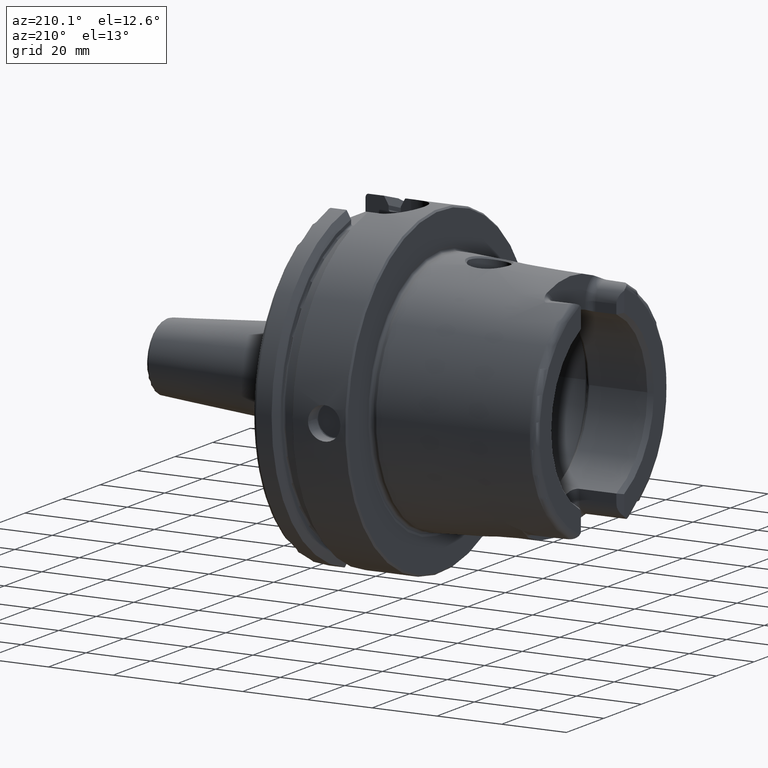
[diagram: clean part render]
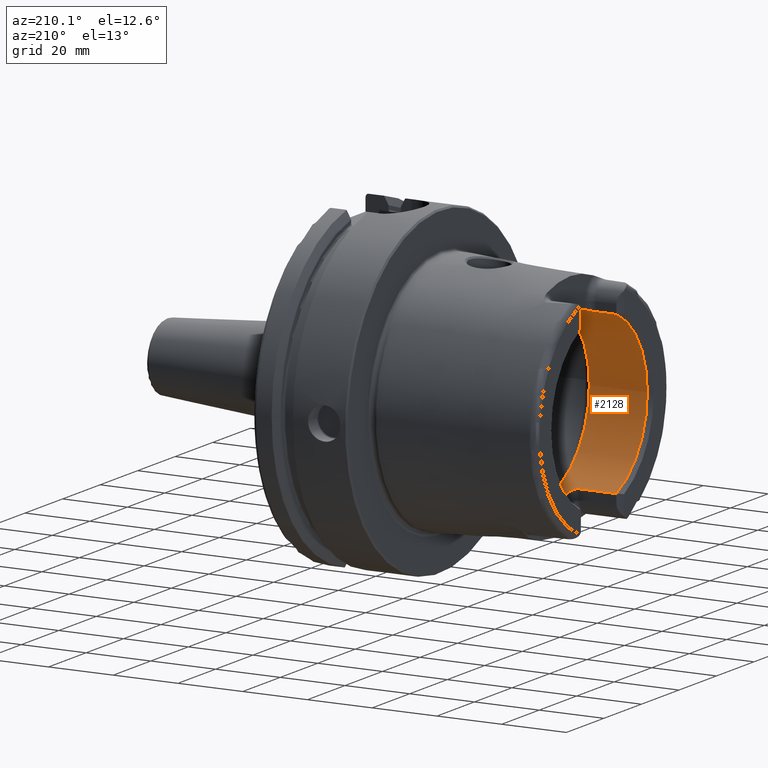
[diagram: same view with one face highlighted and labeled with its STEP entity id]
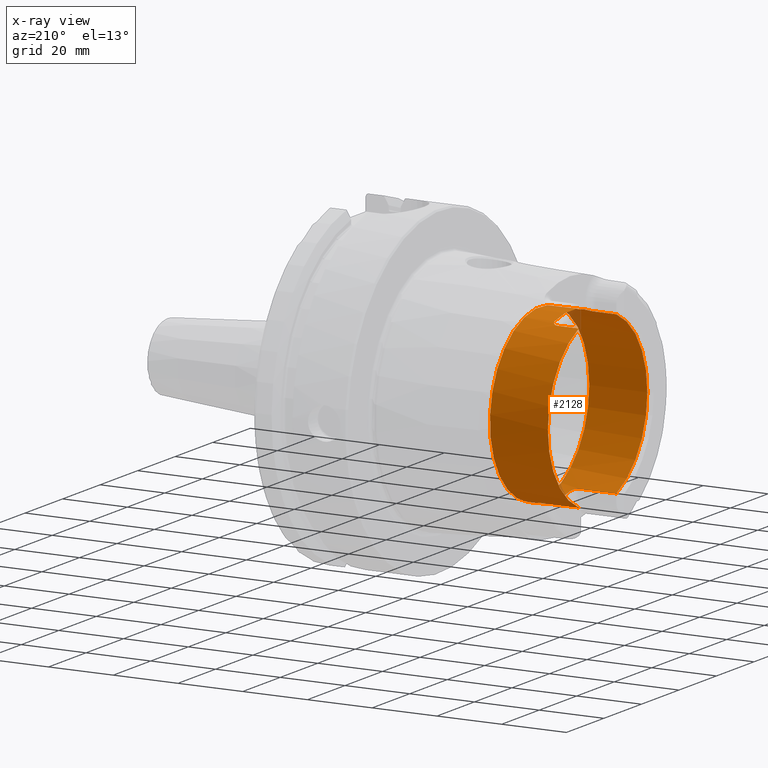
[diagram: x-ray of the same camera — body ghosted, the highlighted face saturated]
A machine part, auxiliary view. The second image highlights one B-rep face of the part: STEP entity #2128.
The next image is the same camera in x-ray: the body ghosted, the highlighted face saturated — about 1% of this face is hidden behind the body in this view.
In plain terms, the highlighted cylindrical surface (bore or boss wall) has radius 26.5 mm, axis along (-1, 0, 0).
Its self-contained STEP definition (entity closure, byte-faithful):
#80=B_SPLINE_CURVE_WITH_KNOTS('',3,(#4441,#4442,#4443,#4444,#4445,#4446,
#4447,#4448,#4449,#4450),.UNSPECIFIED.,.F.,.F.,(4,2,2,2,4),(0.307245873696209,
0.387318131676521,0.467390389656833,0.542677307505841,0.617964225354849),
 .UNSPECIFIED.);
#81=B_SPLINE_CURVE_WITH_KNOTS('',3,(#4459,#4460,#4461,#4462,#4463,#4464,
#4465,#4466,#4467,#4468),.UNSPECIFIED.,.F.,.F.,(4,2,2,2,4),(0.61796422535485,
0.694491364966707,0.771018504578565,0.849854597041439,0.928690689504313),
 .UNSPECIFIED.);
#82=B_SPLINE_CURVE_WITH_KNOTS('',3,(#4481,#4482,#4483,#4484,#4485,#4486,
#4487,#4488,#4489,#4490),.UNSPECIFIED.,.F.,.F.,(4,2,2,2,4),(0.617964225354849,
0.693251143203857,0.768538061052865,0.848610319033177,0.928682577013489),
 .UNSPECIFIED.);
#83=B_SPLINE_CURVE_WITH_KNOTS('',3,(#4510,#4511,#4512,#4513,#4514,#4515,
#4516,#4517,#4518,#4519),.UNSPECIFIED.,.F.,.F.,(4,2,2,2,4),(0.307245873696209,
0.387318131676521,0.467390389656833,0.542677307505841,0.617964225354849),
 .UNSPECIFIED.);
#207=CYLINDRICAL_SURFACE('',#2391,26.5);
#310=FACE_OUTER_BOUND('',#443,.T.);
#443=EDGE_LOOP('',(#1888,#1889,#1890,#1891,#1892,#1893,#1894,#1895,#1896,
#1897,#1898,#1899,#1900,#1901,#1902,#1903,#1904));
#495=LINE('',#3225,#602);
#503=LINE('',#3300,#610);
#507=LINE('',#3364,#614);
#566=LINE('',#4506,#673);
#570=LINE('',#4554,#677);
#602=VECTOR('',#2588,10.);
#610=VECTOR('',#2634,10.);
#614=VECTOR('',#2656,10.);
#673=VECTOR('',#2935,10.);
#677=VECTOR('',#2979,26.5);
#723=CIRCLE('',#2245,26.5);
#724=CIRCLE('',#2246,26.5);
#787=CIRCLE('',#2370,26.5);
#792=CIRCLE('',#2382,26.5);
#793=CIRCLE('',#2385,26.5);
#796=CIRCLE('',#2392,26.5);
#797=CIRCLE('',#2393,26.5);
#868=VERTEX_POINT('',#3215);
#871=VERTEX_POINT('',#3223);
#880=VERTEX_POINT('',#3272);
#882=VERTEX_POINT('',#3278);
#883=VERTEX_POINT('',#3280);
#889=VERTEX_POINT('',#3298);
#895=VERTEX_POINT('',#3331);
#900=VERTEX_POINT('',#3363);
#1007=VERTEX_POINT('',#4439);
#1009=VERTEX_POINT('',#4458);
#1013=VERTEX_POINT('',#4479);
#1014=VERTEX_POINT('',#4480);
#1016=VERTEX_POINT('',#4500);
#1018=VERTEX_POINT('',#4551);
#1019=VERTEX_POINT('',#4552);
#1097=EDGE_CURVE('',#868,#871,#495,.T.);
#1110=EDGE_CURVE('',#882,#883,#723,.T.);
#1111=EDGE_CURVE('',#883,#880,#724,.T.);
#1120=EDGE_CURVE('',#882,#889,#503,.T.);
#1133=EDGE_CURVE('',#900,#895,#507,.T.);
#1291=EDGE_CURVE('',#1007,#889,#80,.T.);
#1295=EDGE_CURVE('',#900,#1009,#81,.T.);
#1301=EDGE_CURVE('',#1013,#1014,#82,.T.);
#1307=EDGE_CURVE('',#1016,#1014,#787,.T.);
#1310=EDGE_CURVE('',#1013,#880,#566,.T.);
#1313=EDGE_CURVE('',#1016,#871,#83,.T.);
#1317=EDGE_CURVE('',#1007,#1009,#792,.T.);
#1319=EDGE_CURVE('',#868,#895,#793,.T.);
#1323=EDGE_CURVE('',#1018,#1019,#796,.T.);
#1324=EDGE_CURVE('',#1018,#883,#570,.T.);
#1325=EDGE_CURVE('',#1019,#1018,#797,.T.);
#1888=ORIENTED_EDGE('',*,*,#1323,.F.);
#1889=ORIENTED_EDGE('',*,*,#1324,.T.);
#1890=ORIENTED_EDGE('',*,*,#1110,.F.);
#1891=ORIENTED_EDGE('',*,*,#1120,.T.);
#1892=ORIENTED_EDGE('',*,*,#1291,.F.);
#1893=ORIENTED_EDGE('',*,*,#1317,.T.);
#1894=ORIENTED_EDGE('',*,*,#1295,.F.);
#1895=ORIENTED_EDGE('',*,*,#1133,.T.);
#1896=ORIENTED_EDGE('',*,*,#1319,.F.);
#1897=ORIENTED_EDGE('',*,*,#1097,.T.);
#1898=ORIENTED_EDGE('',*,*,#1313,.F.);
#1899=ORIENTED_EDGE('',*,*,#1307,.T.);
#1900=ORIENTED_EDGE('',*,*,#1301,.F.);
#1901=ORIENTED_EDGE('',*,*,#1310,.T.);
#1902=ORIENTED_EDGE('',*,*,#1111,.F.);
#1903=ORIENTED_EDGE('',*,*,#1324,.F.);
#1904=ORIENTED_EDGE('',*,*,#1325,.F.);
#2128=ADVANCED_FACE('',(#310),#207,.F.);
#2245=AXIS2_PLACEMENT_3D('',#3281,#2612,#2613);
#2246=AXIS2_PLACEMENT_3D('',#3282,#2614,#2615);
#2370=AXIS2_PLACEMENT_3D('',#4501,#2928,#2929);
#2382=AXIS2_PLACEMENT_3D('',#4528,#2956,#2957);
#2385=AXIS2_PLACEMENT_3D('',#4543,#2962,#2963);
#2391=AXIS2_PLACEMENT_3D('',#4550,#2975,#2976);
#2392=AXIS2_PLACEMENT_3D('',#4553,#2977,#2978);
#2393=AXIS2_PLACEMENT_3D('',#4555,#2980,#2981);
#2588=DIRECTION('',(1.,0.,0.));
#2612=DIRECTION('center_axis',(1.,0.,0.));
#2613=DIRECTION('ref_axis',(0.,-1.,0.));
#2614=DIRECTION('center_axis',(1.,0.,0.));
#2615=DIRECTION('ref_axis',(0.,-1.,0.));
#2634=DIRECTION('',(1.,0.,0.));
#2656=DIRECTION('',(-1.,0.,0.));
#2928=DIRECTION('center_axis',(-1.,0.,0.));
#2929=DIRECTION('ref_axis',(0.,1.,0.));
#2935=DIRECTION('',(-1.,0.,0.));
#2956=DIRECTION('center_axis',(-1.,0.,0.));
#2957=DIRECTION('ref_axis',(0.,1.,0.));
#2962=DIRECTION('center_axis',(1.,0.,0.));
#2963=DIRECTION('ref_axis',(0.,-1.,0.));
#2975=DIRECTION('center_axis',(-1.,0.,0.));
#2976=DIRECTION('ref_axis',(0.,1.,0.));
#2977=DIRECTION('center_axis',(-1.,0.,0.));
#2978=DIRECTION('ref_axis',(0.,0.,1.));
#2979=DIRECTION('',(-1.,0.,0.));
#2980=DIRECTION('center_axis',(-1.,0.,0.));
#2981=DIRECTION('ref_axis',(0.,0.,1.));
#3215=CARTESIAN_POINT('',(-48.5,10.01,-24.5367051577835));
#3223=CARTESIAN_POINT('',(-37.,10.01,-24.5367051577835));
#3225=CARTESIAN_POINT('',(-40.2903629710818,10.01,-24.5367051577835));
#3272=CARTESIAN_POINT('',(-48.5,-10.01,-24.5367051577835));
#3278=CARTESIAN_POINT('',(-48.5,-10.01,24.5367051577835));
#3280=CARTESIAN_POINT('',(-48.5,-26.5,3.24531401774049E-15));
#3281=CARTESIAN_POINT('Origin',(-48.5,0.,0.));
#3282=CARTESIAN_POINT('Origin',(-48.5,0.,0.));
#3298=CARTESIAN_POINT('',(-42.,-10.01,24.5367051577835));
#3300=CARTESIAN_POINT('',(-40.2903629710818,-10.01,24.5367051577835));
#3331=CARTESIAN_POINT('',(-48.5,10.01,24.5367051577835));
#3363=CARTESIAN_POINT('',(-42.,10.01,24.5367051577835));
#3364=CARTESIAN_POINT('',(-40.2903629710818,10.01,24.5367051577835));
#4439=CARTESIAN_POINT('',(-40.,-8.01,25.2604414054862));
#4441=CARTESIAN_POINT('Ctrl Pts',(-40.,-8.01,25.2604414054862));
#4442=CARTESIAN_POINT('Ctrl Pts',(-40.,-8.26442271458071,25.1797648285777));
#4443=CARTESIAN_POINT('Ctrl Pts',(-40.0513332778729,-8.53503831367686,25.0892968127514));
#4444=CARTESIAN_POINT('Ctrl Pts',(-40.2604388709541,-9.03317850506395,24.9142806373643));
#4445=CARTESIAN_POINT('Ctrl Pts',(-40.4182028025644,-9.2607746884821,24.8299262887475));
#4446=CARTESIAN_POINT('Ctrl Pts',(-40.7762398849713,-9.61038047170956,24.6966285655713));
#4447=CARTESIAN_POINT('Ctrl Pts',(-40.996584045901,-9.75993653512726,24.6374761492843));
#4448=CARTESIAN_POINT('Ctrl Pts',(-41.4829332858843,-9.95981108540838,24.557356442995));
#4449=CARTESIAN_POINT('Ctrl Pts',(-41.74904360717,-10.01,24.5367051577835));
#4450=CARTESIAN_POINT('Ctrl Pts',(-42.,-10.01,24.5367051577835));
#4458=CARTESIAN_POINT('',(-40.,8.01,25.2604414054862));
#4459=CARTESIAN_POINT('Ctrl Pts',(-42.,10.01,24.5367051577835));
#4460=CARTESIAN_POINT('Ctrl Pts',(-41.7449095346271,10.01,24.5367051577835));
#4461=CARTESIAN_POINT('Ctrl Pts',(-41.4747619014646,9.95816285425487,24.5580391842641));
#4462=CARTESIAN_POINT('Ctrl Pts',(-40.9823460284033,9.75229566196282,24.640515927451));
#4463=CARTESIAN_POINT('Ctrl Pts',(-40.7599680829949,9.59839520774108,24.7013267120605));
#4464=CARTESIAN_POINT('Ctrl Pts',(-40.4063494382929,9.24477656303909,24.8358806096526));
#4465=CARTESIAN_POINT('Ctrl Pts',(-40.2529543645221,9.01930384320105,24.9192727261742));
#4466=CARTESIAN_POINT('Ctrl Pts',(-40.049776768453,8.52719637786957,25.0919293188873));
#4467=CARTESIAN_POINT('Ctrl Pts',(-40.,8.26049490494288,25.1810103236462));
#4468=CARTESIAN_POINT('Ctrl Pts',(-40.,8.01,25.2604414054862));
#4479=CARTESIAN_POINT('',(-37.,-10.01,-24.5367051577835));
#4480=CARTESIAN_POINT('',(-35.,-8.01,-25.2604414054862));
#4481=CARTESIAN_POINT('Ctrl Pts',(-37.,-10.01,-24.5367051577835));
#4482=CARTESIAN_POINT('Ctrl Pts',(-36.74904360717,-10.01,-24.5367051577835));
#4483=CARTESIAN_POINT('Ctrl Pts',(-36.4829332858843,-9.95981108540838,-24.557356442995));
#4484=CARTESIAN_POINT('Ctrl Pts',(-35.9965840459011,-9.75993653512726,-24.6374761492843));
#4485=CARTESIAN_POINT('Ctrl Pts',(-35.7762398849713,-9.61038047170956,-24.6966285655713));
#4486=CARTESIAN_POINT('Ctrl Pts',(-35.4182028025644,-9.2607746884821,-24.8299262887475));
#4487=CARTESIAN_POINT('Ctrl Pts',(-35.2604388709541,-9.03317850506395,-24.9142806373643));
#4488=CARTESIAN_POINT('Ctrl Pts',(-35.0513332778729,-8.53503831367686,-25.0892968127514));
#4489=CARTESIAN_POINT('Ctrl Pts',(-35.,-8.26442271458071,-25.1797648285777));
#4490=CARTESIAN_POINT('Ctrl Pts',(-35.,-8.01,-25.2604414054862));
#4500=CARTESIAN_POINT('',(-35.,8.01,-25.2604414054862));
#4501=CARTESIAN_POINT('Origin',(-35.,0.,0.));
#4506=CARTESIAN_POINT('',(-40.2903629710818,-10.01,-24.5367051577835));
#4510=CARTESIAN_POINT('Ctrl Pts',(-35.,8.01,-25.2604414054862));
#4511=CARTESIAN_POINT('Ctrl Pts',(-35.,8.26442271458071,-25.1797648285777));
#4512=CARTESIAN_POINT('Ctrl Pts',(-35.0513332778729,8.53503831367686,-25.0892968127514));
#4513=CARTESIAN_POINT('Ctrl Pts',(-35.2604388709541,9.03317850506395,-24.9142806373643));
#4514=CARTESIAN_POINT('Ctrl Pts',(-35.4182028025644,9.2607746884821,-24.8299262887475));
#4515=CARTESIAN_POINT('Ctrl Pts',(-35.7762398849713,9.61038047170956,-24.6966285655713));
#4516=CARTESIAN_POINT('Ctrl Pts',(-35.9965840459011,9.75993653512726,-24.6374761492843));
#4517=CARTESIAN_POINT('Ctrl Pts',(-36.4829332858843,9.95981108540838,-24.557356442995));
#4518=CARTESIAN_POINT('Ctrl Pts',(-36.74904360717,10.01,-24.5367051577835));
#4519=CARTESIAN_POINT('Ctrl Pts',(-37.,10.01,-24.5367051577835));
#4528=CARTESIAN_POINT('Origin',(-40.,0.,0.));
#4543=CARTESIAN_POINT('Origin',(-48.5,0.,0.));
#4550=CARTESIAN_POINT('Origin',(-40.2903629710818,0.,0.));
#4551=CARTESIAN_POINT('',(-30.5807259421637,-26.5,3.24531401774049E-15));
#4552=CARTESIAN_POINT('',(-30.5807259421637,-3.24531401774049E-15,-26.5));
#4553=CARTESIAN_POINT('Origin',(-30.5807259421637,0.,0.));
#4554=CARTESIAN_POINT('',(-40.2903629710818,-26.5,3.24531401774049E-15));
#4555=CARTESIAN_POINT('Origin',(-30.5807259421637,0.,0.));